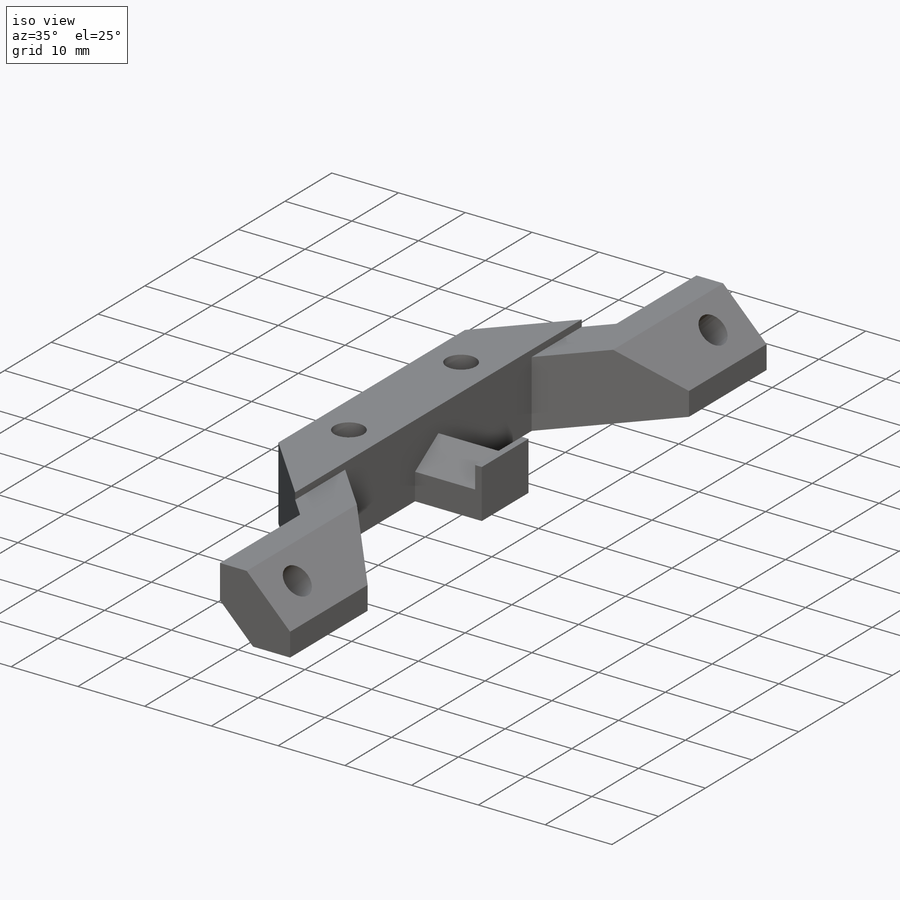
[diagram: iso view]
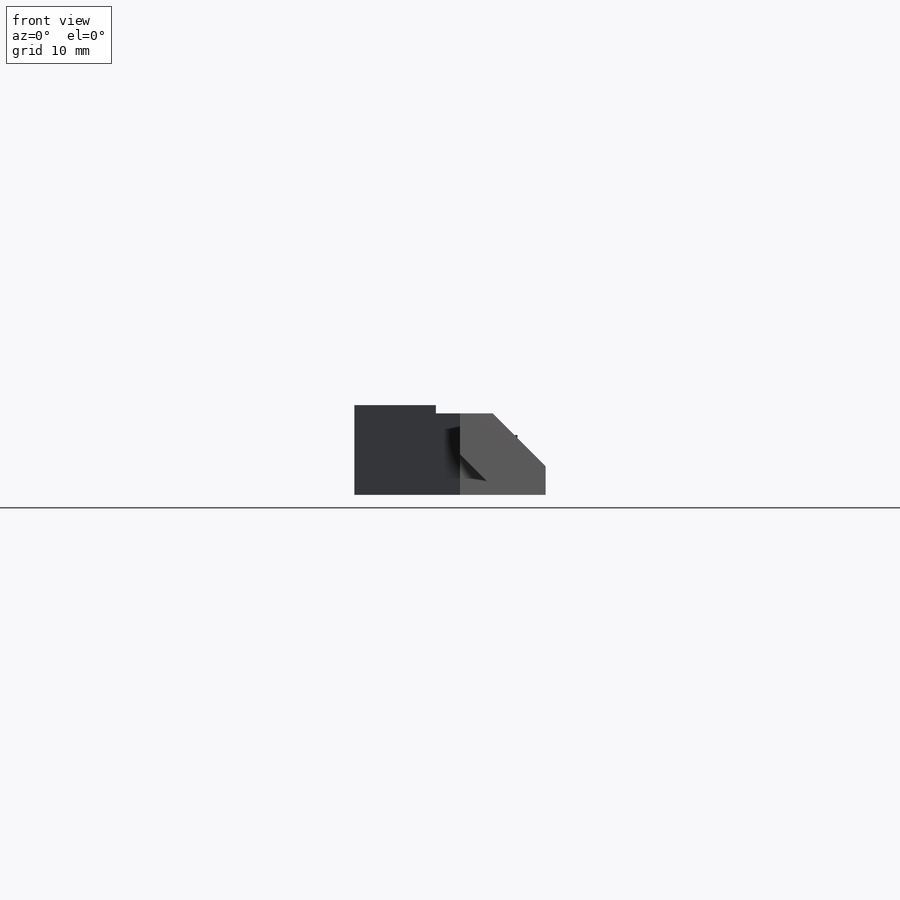
[diagram: front view]
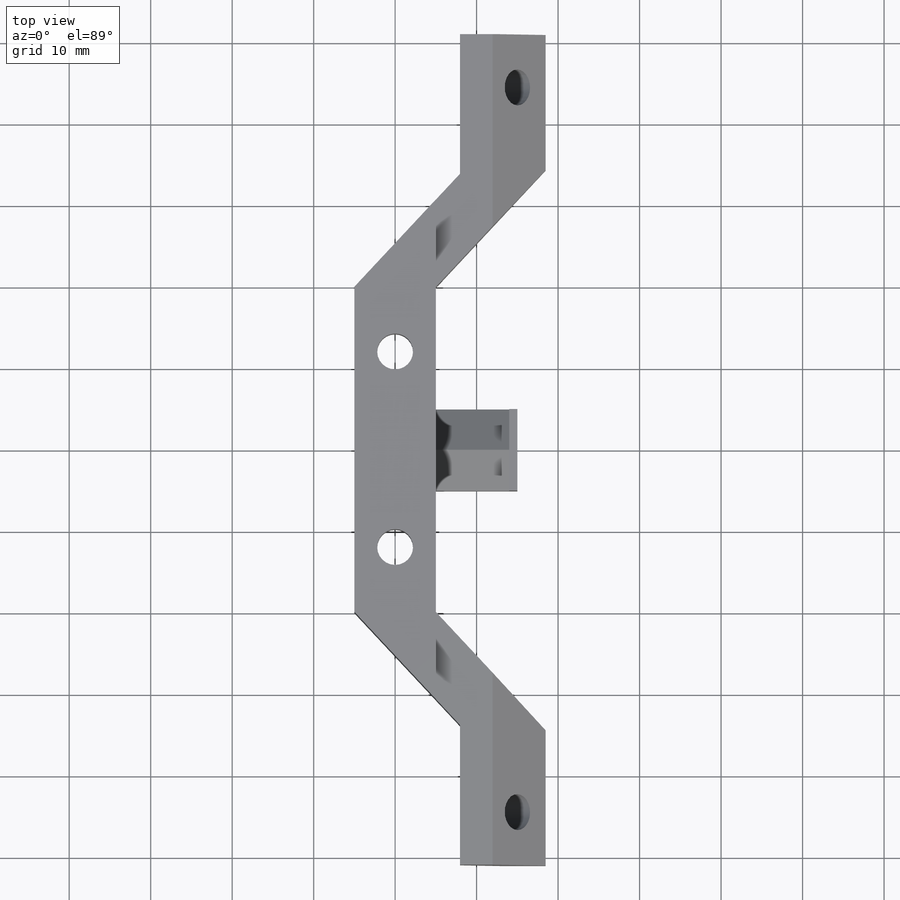
[diagram: top view]
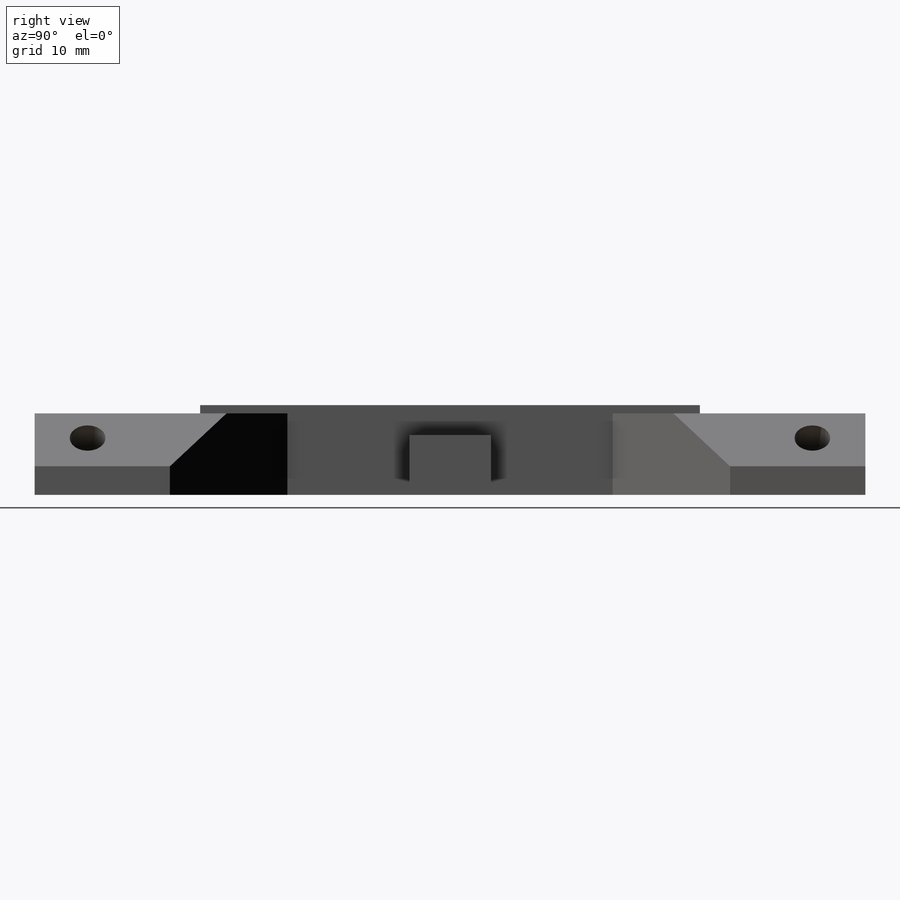
[diagram: right view]
SOLIDWORKS PART (.sldprt)
format: sldprt  version: not decoded by parser v0  size: 324,096 bytes
history: native  units: mm
features: sketch x10, cut_extrude x6, extrude x4, material x1 (+11 scaffold rows collapsed)
feature tree (32):
  scaffold x11  (default folders/planes/origin — collapsed)
  material  "Material <not specified>"
  sketch  "Sketch1"  dims[D1=10.0mm D2=39.9mm D3=16.6mm D4=10.5mm D5=19.0mm D6=23.4685mm]
  extrude  "Boss-Extrude1"  Depth=10mm
  sketch  "Sketch2"  dims[c1.D1=2.6mm c1.D2=3.5mm c1.D3=7.9mm c1.D4=8.1mm c1.D5=4.4mm c1.D6=~5.290601mm c2.D6=~130.780326deg c2.D3=2.6mm c3.D3=~254.867157deg c4.D3=~2.109399mm c5.D3=225.0deg c5.D1=4.0mm]
  cut_extrude  "Cut-Extrude1"  [1 undecoded]
  sketch  "Sketch4"  dims[c1.D1=7.9mm c1.D2=8.3mm c2.D1=7.0mm c2.D3=~3.453344mm c2.D2=~3.453344mm c3.D3=~3.453344mm c3.D2=2.6mm]
  sketch  "Sketch13"  dims[D1=4.0mm D2=6.0mm D3=5.0mm]
  sketch  "Sketch15"  dims[D2=4.4mm D1=6.5mm D3=4.899mm D4=~19.786326mm]
  cut_extrude  "Cut-Extrude5"  [1 undecoded]
  sketch  "Sketch17"  dims[D1=4.4mm D2=24.0mm D3=5.0mm]
  cut_extrude  "Cut-Extrude6"  Depth=15mm
  sketch  "Sketch18"
  cut_extrude  "Cut-Extrude7"  Depth=15mm
  extrude  "Boss-Extrude2"  Depth=9mm
  sketch  "Sketch21"
  extrude  "Boss-Extrude3"  Depth=1mm
  cut_extrude  "Cut-Extrude8"  [1 undecoded]
  sketch  "Sketch22"  dims[D1=7.0mm]
  cut_extrude  "Cut-Extrude9"  Depth=4mm
  sketch  "Sketch23"  dims[D1=4.4mm]
  extrude  "Boss-Extrude4"  Depth=1mm
decode coverage: 15 of 20 modeling features carry decoded parameters
note: ~ marks probable driven/reference dimensions
note: 3 parameter values undecoded
summary: no parameter record found for 3 features
note: suppression state not decoded; provenance and decode notes live in map.json
